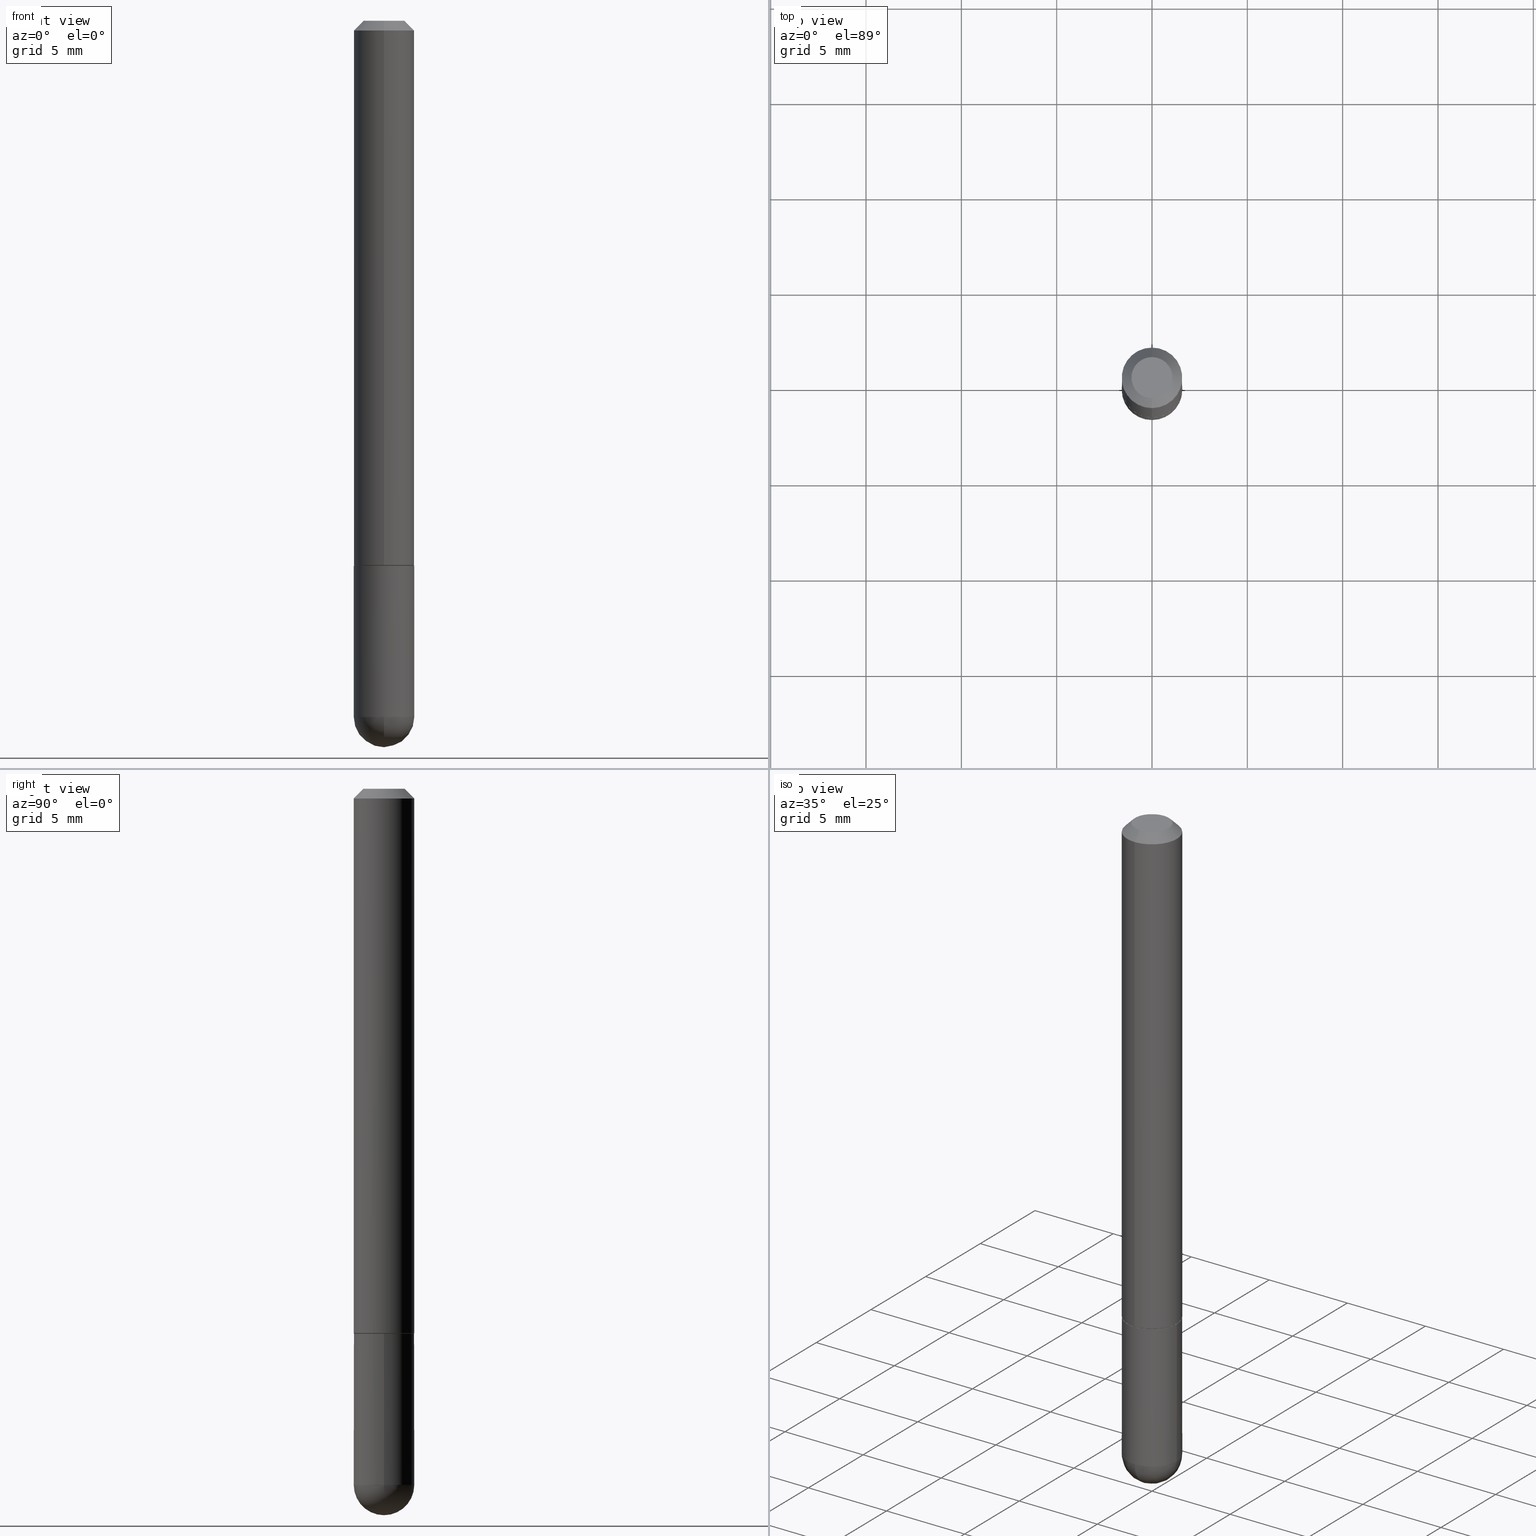
[diagram: canonical four-view strip — front | top / right | iso, engineering-drawing reading convention]
A machine part, canonical four-view strip (front | top / right | iso — engineering-drawing reading convention). The complete STEP part file that produces these views, byte-faithful:
ISO-10303-21;
HEADER;
FILE_DESCRIPTION (( 'STEP AP203' ),
    '1' );
FILE_NAME ('30943.STEP',
    '2024-02-21T16:47:12',
    ( '' ),
    ( '' ),
    'SwSTEP 2.0',
    'SolidWorks 2023',
    '' );
FILE_SCHEMA (( 'CONFIG_CONTROL_DESIGN' ));
ENDSEC;

DATA;
#1 = DIRECTION ( 'NONE',  ( -2.445468806185136597E-29, 3.491481338843145583E-15, 1.000000000000000000 ) ) ;
#2 = LINE ( 'NONE', #156, #409 ) ;
#3 = ORIENTED_EDGE ( 'NONE', *, *, #263, .F. ) ;
#4 = DIRECTION ( 'NONE',  ( 1.000000000000000000, -6.982962677686268288E-15, 0.000000000000000000 ) ) ;
#5 = ORIENTED_EDGE ( 'NONE', *, *, #371, .T. ) ;
#6 = CC_DESIGN_PERSON_AND_ORGANIZATION_ASSIGNMENT ( #276, #168, ( #74 ) ) ;
#7 = AXIS2_PLACEMENT_3D ( 'NONE', #187, #59, #411 ) ;
#8 = EDGE_CURVE ( 'NONE', #160, #316, #391, .T. ) ;
#9 = CIRCLE ( 'NONE', #7, 0.06149999999999997830 ) ;
#10 = DIRECTION ( 'NONE',  ( -6.982962677686265922E-15, -1.000000000000000000, 4.442029257990673709E-15 ) ) ;
#11 = CARTESIAN_POINT ( 'NONE',  ( -4.287811248607198352E-16, -0.06250000000000001388, -0.01999999999999985123 ) ) ;
#12 = ADVANCED_FACE ( 'NONE', ( #50 ), #349, .T. ) ;
#13 = CARTESIAN_POINT ( 'NONE',  ( 0.000000000000000000, 0.000000000000000000, 0.000000000000000000 ) ) ;
#14 = ORIENTED_EDGE ( 'NONE', *, *, #94, .F. ) ;
#15 = PLANE ( 'NONE',  #126 ) ;
#16 = SPHERICAL_SURFACE ( 'NONE', #329, 0.06250000000000018041 ) ;
#17 = ORIENTED_EDGE ( 'NONE', *, *, #401, .F. ) ;
#18 = EDGE_CURVE ( 'NONE', #67, #330, #129, .T. ) ;
#19 = AXIS2_PLACEMENT_3D ( 'NONE', #23, #153, #274 ) ;
#20 = APPROVAL_DATE_TIME ( #366, #86 ) ;
#21 = PERSON_AND_ORGANIZATION_ROLE ( 'creator' ) ;
#22 = EDGE_CURVE ( 'NONE', #275, #54, #44, .T. ) ;
#23 = CARTESIAN_POINT ( 'NONE',  ( 2.751152406958278111E-29, -3.927916506198538435E-15, -1.124999999999999778 ) ) ;
#24 = DIRECTION ( 'NONE',  ( -2.466183177392588152E-29, 3.461817180285283687E-15, 1.000000000000000000 ) ) ;
#25 = VERTEX_POINT ( 'NONE', #173 ) ;
#26 = PERSON_AND_ORGANIZATION_ROLE ( 'creator' ) ;
#27 = CARTESIAN_POINT ( 'NONE',  ( -6.706145734425565363E-45, 9.413514263557746983E-31, 2.719240726277172169E-16 ) ) ;
#28 = VERTEX_POINT ( 'NONE', #323 ) ;
#29 = CALENDAR_DATE ( 2024, 21, 2 ) ;
#30 = LOCAL_TIME ( 11, 47, 12.00000000000000000, #151 ) ;
#31 = VECTOR ( 'NONE', #326, 39.37007874015748143 ) ;
#32 = AXIS2_PLACEMENT_3D ( 'NONE', #208, #305, #159 ) ;
#33 = CYLINDRICAL_SURFACE ( 'NONE', #97, 0.06249999999999997918 ) ;
#34 = EDGE_LOOP ( 'NONE', ( #343, #235, #118, #169 ) ) ;
#35 = CARTESIAN_POINT ( 'NONE',  ( 3.515361408891134418E-29, -5.019004424587023131E-15, -1.437500000000000222 ) ) ;
#36 = CC_DESIGN_DATE_AND_TIME_ASSIGNMENT ( #162, #125, ( #172 ) ) ;
#37 = VERTEX_POINT ( 'NONE', #264 ) ;
#38 = ORIENTED_EDGE ( 'NONE', *, *, #371, .F. ) ;
#39 = DIRECTION ( 'NONE',  ( -7.105427357601001859E-15, -1.000000000000000000, 0.000000000000000000 ) ) ;
#40 = EDGE_CURVE ( 'NONE', #28, #255, #45, .T. ) ;
#41 = DIRECTION ( 'NONE',  ( 6.982962677686265922E-15, 1.000000000000000000, -3.483106191921938315E-15 ) ) ;
#42 = MANIFOLD_SOLID_BREP ( 'Body-Move/Copy2[2]', #224 ) ;
#43 = CIRCLE ( 'NONE', #171, 0.06249999999999995143 ) ;
#44 = LINE ( 'NONE', #110, #161 ) ;
#45 = CIRCLE ( 'NONE', #387, 0.06149999999999997830 ) ;
#46 = APPROVAL ( #307, 'UNSPECIFIED' ) ;
#47 = DIRECTION ( 'NONE',  ( 0.000000000000000000, 0.000000000000000000, 1.000000000000000000 ) ) ;
#48 = CALENDAR_DATE ( 2024, 21, 2 ) ;
#49 = MANIFOLD_SOLID_BREP ( 'Body-Move/Copy2[1]', #107 ) ;
#50 = FACE_OUTER_BOUND ( 'NONE', #218, .T. ) ;
#51 = AXIS2_PLACEMENT_3D ( 'NONE', #342, #335, #226 ) ;
#52 = AXIS2_PLACEMENT_3D ( 'NONE', #386, #351, #41 ) ;
#53 = ADVANCED_FACE ( 'NONE', ( #232 ), #122, .T. ) ;
#54 = VERTEX_POINT ( 'NONE', #11 ) ;
#55 = AXIS2_PLACEMENT_3D ( 'NONE', #35, #279, #4 ) ;
#56 = CC_DESIGN_SECURITY_CLASSIFICATION ( #242, ( #74 ) ) ;
#57 = EDGE_CURVE ( 'NONE', #25, #124, #395, .T. ) ;
#58 = PERSON_AND_ORGANIZATION ( #211, #361 ) ;
#59 = DIRECTION ( 'NONE',  ( -2.466183177392588152E-29, 3.461817180285283687E-15, 1.000000000000000000 ) ) ;
#60 = LINE ( 'NONE', #407, #178 ) ;
#61 = DIRECTION ( 'NONE',  ( -6.982962677686265133E-15, -1.000000000000000000, 4.370956789862817205E-15 ) ) ;
#62 = SPHERICAL_SURFACE ( 'NONE', #253, 0.06250000000000018041 ) ;
#63 = LINE ( 'NONE', #286, #203 ) ;
#64 = ORIENTED_EDGE ( 'NONE', *, *, #57, .T. ) ;
#65 = CARTESIAN_POINT ( 'NONE',  ( 4.364351673553917187E-16, 0.06249999999999988204, -0.02000000000000028491 ) ) ;
#66 = DIRECTION ( 'NONE',  ( -2.466183177392588152E-29, 3.461817180285283687E-15, 1.000000000000000000 ) ) ;
#67 = VERTEX_POINT ( 'NONE', #359 ) ;
#68 = EDGE_CURVE ( 'NONE', #160, #37, #43, .T. ) ;
#69 = CARTESIAN_POINT ( 'NONE',  ( 4.932366354785193785E-31, -6.923634360570589906E-17, -0.02000000000000006981 ) ) ;
#70 = CARTESIAN_POINT ( 'NONE',  ( 2.751152406958278111E-29, -3.927916506198538435E-15, -1.124999999999999778 ) ) ;
#71 = EDGE_LOOP ( 'NONE', ( #287, #64, #3, #207 ) ) ;
#72 = DIRECTION ( 'NONE',  ( 4.937700262164546464E-15, 0.7071067811865449082, -0.7071067811865501263 ) ) ;
#73 = CONICAL_SURFACE ( 'NONE', #51, 0.06249999999999995143, 0.7853981633974480570 ) ;
#74 = PRODUCT_DEFINITION_FORMATION_WITH_SPECIFIED_SOURCE ( 'ANY', '', #185, .NOT_KNOWN. ) ;
#75 = ADVANCED_FACE ( 'NONE', ( #297 ), #15, .F. ) ;
#76 = ORIENTED_EDGE ( 'NONE', *, *, #298, .T. ) ;
#77 = AXIS2_PLACEMENT_3D ( 'NONE', #188, #260, #268 ) ;
#78 = CARTESIAN_POINT ( 'NONE',  ( 2.774456074566661636E-29, -3.894544327820944098E-15, -1.124999999999999778 ) ) ;
#79 = DESIGN_CONTEXT ( 'detailed design', #352, 'design' ) ;
#80 = CARTESIAN_POINT ( 'NONE',  ( 3.515361408891134418E-29, -5.019004424587023131E-15, -1.437500000000000222 ) ) ;
#81 = APPROVAL_DATE_TIME ( #175, #46 ) ;
#82 = ADVANCED_FACE ( 'NONE', ( #360 ), #16, .T. ) ;
#83 = AXIS2_PLACEMENT_3D ( 'NONE', #69, #392, #201 ) ;
#84 = CIRCLE ( 'NONE', #378, 0.06249999999999995143 ) ;
#85 = CARTESIAN_POINT ( 'NONE',  ( -0.06250000000000001388, -4.029371255542718167E-15, -1.124999999999999778 ) ) ;
#86 = APPROVAL ( #252, 'UNSPECIFIED' ) ;
#87 = CARTESIAN_POINT ( 'NONE',  ( 0.000000000000000000, 0.000000000000000000, 0.000000000000000000 ) ) ;
#88 = ADVANCED_FACE ( 'NONE', ( #117 ), #261, .F. ) ;
#89 = DIRECTION ( 'NONE',  ( -2.445468806185136877E-29, 3.491481338843145188E-15, 1.000000000000000000 ) ) ;
#90 = ORIENTED_EDGE ( 'NONE', *, *, #119, .F. ) ;
#91 = CARTESIAN_POINT ( 'NONE',  ( 2.774456074566661636E-29, -3.894544327820944098E-15, -1.124999999999999778 ) ) ;
#92 = DIRECTION ( 'NONE',  ( -6.982962677686265922E-15, -1.000000000000000000, 3.483106191921938315E-15 ) ) ;
#93 = ORIENTED_EDGE ( 'NONE', *, *, #193, .T. ) ;
#94 = EDGE_CURVE ( 'NONE', #67, #37, #204, .T. ) ;
#95 = FACE_OUTER_BOUND ( 'NONE', #336, .T. ) ;
#96 = ORIENTED_EDGE ( 'NONE', *, *, #321, .T. ) ;
#97 = AXIS2_PLACEMENT_3D ( 'NONE', #165, #1, #354 ) ;
#98 = PERSON_AND_ORGANIZATION_ROLE ( 'classification_officer' ) ;
#99 = CARTESIAN_POINT ( 'NONE',  ( 4.405364961712898701E-16, 0.06149999999999608558, -1.125000000000000222 ) ) ;
#100 = DIRECTION ( 'NONE',  ( -2.466183177392588152E-29, 3.461817180285283687E-15, 1.000000000000000000 ) ) ;
#101 = ORIENTED_EDGE ( 'NONE', *, *, #18, .T. ) ;
#102 = DIRECTION ( 'NONE',  ( -2.466183177392588152E-29, 3.461817180285283687E-15, 1.000000000000000000 ) ) ;
#103 = ORIENTED_EDGE ( 'NONE', *, *, #317, .T. ) ;
#104 = ADVANCED_FACE ( 'NONE', ( #112 ), #116, .T. ) ;
#105 = CALENDAR_DATE ( 2024, 21, 2 ) ;
#106 = CIRCLE ( 'NONE', #327, 0.06249999999999995143 ) ;
#107 = CLOSED_SHELL ( 'NONE', ( #146, #82, #134, #75, #240 ) ) ;
#108 = DIRECTION ( 'NONE',  ( 6.982962677686265922E-15, 1.000000000000000000, -4.370956789862807739E-15 ) ) ;
#109 = CC_DESIGN_PERSON_AND_ORGANIZATION_ASSIGNMENT ( #311, #21, ( #172 ) ) ;
#110 = CARTESIAN_POINT ( 'NONE',  ( -4.287811248607198352E-16, -0.06250000000000001388, -0.01999999999999985123 ) ) ;
#111 = ADVANCED_FACE ( 'NONE', ( #367 ), #389, .T. ) ;
#112 = FACE_OUTER_BOUND ( 'NONE', #71, .T. ) ;
#113 = APPROVAL_ROLE ( '' ) ;
#114 = AXIS2_PLACEMENT_3D ( 'NONE', #364, #332, #221 ) ;
#115 = ORIENTED_EDGE ( 'NONE', *, *, #148, .F. ) ;
#116 = CYLINDRICAL_SURFACE ( 'NONE', #269, 0.06250000000000000000 ) ;
#117 = FACE_OUTER_BOUND ( 'NONE', #374, .T. ) ;
#118 = ORIENTED_EDGE ( 'NONE', *, *, #358, .F. ) ;
#119 = EDGE_CURVE ( 'NONE', #167, #316, #303, .T. ) ;
#120 = DIRECTION ( 'NONE',  ( -1.000000000000000000, 6.982962677686265922E-15, -4.876176775795935793E-29 ) ) ;
#121 = EDGE_LOOP ( 'NONE', ( #14, #101, #227, #128 ) ) ;
#122 = CONICAL_SURFACE ( 'NONE', #163, 0.06149999999999997830, 0.7853981633975849475 ) ;
#123 = CYLINDRICAL_SURFACE ( 'NONE', #385, 0.06249999999999997918 ) ;
#124 = VERTEX_POINT ( 'NONE', #65 ) ;
#125 = DATE_TIME_ROLE ( 'creation_date' ) ;
#126 = AXIS2_PLACEMENT_3D ( 'NONE', #236, #150, #120 ) ;
#127 = CARTESIAN_POINT ( 'NONE',  ( 2.771989891389269485E-29, -3.891082510640658844E-15, -1.124000000000000110 ) ) ;
#128 = ORIENTED_EDGE ( 'NONE', *, *, #206, .F. ) ;
#129 = CIRCLE ( 'NONE', #278, 0.06250000000000018041 ) ;
#130 = DATE_AND_TIME ( #288, #296 ) ;
#131 = FACE_OUTER_BOUND ( 'NONE', #251, .T. ) ;
#132 = DIRECTION ( 'NONE',  ( -2.445468806185136597E-29, 3.491481338843145583E-15, 1.000000000000000000 ) ) ;
#133 = ORIENTED_EDGE ( 'NONE', *, *, #68, .T. ) ;
#134 = ADVANCED_FACE ( 'NONE', ( #95 ), #62, .T. ) ;
#135 = CARTESIAN_POINT ( 'NONE',  ( -4.440892098500294840E-16, -0.06250000000000532907, -1.437500000000000000 ) ) ;
#136 = EDGE_LOOP ( 'NONE', ( #399, #76, #96, #383 ) ) ;
#137 = CARTESIAN_POINT ( 'NONE',  ( 3.515361408891134418E-29, -5.019004424587023131E-15, -1.437500000000000222 ) ) ;
#138 = DIRECTION ( 'NONE',  ( -6.982962677686266711E-15, -1.000000000000000000, 3.461817180285284476E-15 ) ) ;
#139 = ORIENTED_EDGE ( 'NONE', *, *, #94, .T. ) ;
#140 = AXIS2_PLACEMENT_3D ( 'NONE', #27, #318, #213 ) ;
#141 = EDGE_CURVE ( 'NONE', #28, #376, #60, .T. ) ;
#142 = LINE ( 'NONE', #309, #398 ) ;
#143 = ORIENTED_EDGE ( 'NONE', *, *, #148, .T. ) ;
#144 =( NAMED_UNIT ( * ) SI_UNIT ( $, .STERADIAN. ) SOLID_ANGLE_UNIT ( ) );
#145 = DIRECTION ( 'NONE',  ( -2.466183177392588152E-29, 3.461817180285283687E-15, 1.000000000000000000 ) ) ;
#146 = ADVANCED_FACE ( 'NONE', ( #282 ), #123, .T. ) ;
#147 = APPLICATION_CONTEXT ( 'configuration controlled 3d designs of mechanical parts and assemblies' ) ;
#148 = EDGE_CURVE ( 'NONE', #330, #160, #84, .T. ) ;
#149 = APPLICATION_PROTOCOL_DEFINITION ( 'international standard', 'config_control_design', 1994, #147 ) ;
#150 = DIRECTION ( 'NONE',  ( 2.438088387897960049E-29, -3.491481338843145188E-15, -1.000000000000000000 ) ) ;
#151 = COORDINATED_UNIVERSAL_TIME_OFFSET ( 5, 0, .BEHIND. ) ;
#152 = CC_DESIGN_PERSON_AND_ORGANIZATION_ASSIGNMENT ( #215, #98, ( #242 ) ) ;
#153 = DIRECTION ( 'NONE',  ( -2.445468806185136597E-29, 3.491481338843145583E-15, 1.000000000000000000 ) ) ;
#154 = ORIENTED_EDGE ( 'NONE', *, *, #206, .T. ) ;
#155 = DIRECTION ( 'NONE',  ( -2.445468806185136597E-29, 3.491481338843145583E-15, 1.000000000000000000 ) ) ;
#156 = CARTESIAN_POINT ( 'NONE',  ( 4.364351673553917187E-16, 0.06249999999999988204, -0.02000000000000028491 ) ) ;
#157 = ORIENTED_EDGE ( 'NONE', *, *, #193, .F. ) ;
#158 = AXIS2_PLACEMENT_3D ( 'NONE', #127, #244, #283 ) ;
#159 = DIRECTION ( 'NONE',  ( -6.982962677686265922E-15, -1.000000000000000000, 4.442029257990673709E-15 ) ) ;
#160 = VERTEX_POINT ( 'NONE', #334 ) ;
#161 = VECTOR ( 'NONE', #291, 39.37007874015748143 ) ;
#162 = DATE_AND_TIME ( #29, #267 ) ;
#163 = AXIS2_PLACEMENT_3D ( 'NONE', #294, #353, #10 ) ;
#164 = PRODUCT_DEFINITION_SHAPE ( 'NONE', 'NONE',  #172 ) ;
#165 = CARTESIAN_POINT ( 'NONE',  ( 0.000000000000000000, 0.000000000000000000, 0.000000000000000000 ) ) ;
#166 = DIRECTION ( 'NONE',  ( -6.982962677686265922E-15, -1.000000000000000000, 3.461817180285283292E-15 ) ) ;
#167 = VERTEX_POINT ( 'NONE', #85 ) ;
#168 = PERSON_AND_ORGANIZATION_ROLE ( 'design_supplier' ) ;
#169 = ORIENTED_EDGE ( 'NONE', *, *, #141, .F. ) ;
#170 = ORIENTED_EDGE ( 'NONE', *, *, #317, .F. ) ;
#171 = AXIS2_PLACEMENT_3D ( 'NONE', #80, #396, #200 ) ;
#172 = PRODUCT_DEFINITION ( 'UNKNOWN', '', #74, #79 ) ;
#173 = CARTESIAN_POINT ( 'NONE',  ( 4.440892098500769143E-16, 0.06249999999999615585, -1.124000000000000332 ) ) ;
#174 = CC_DESIGN_APPROVAL ( #324, ( #172 ) ) ;
#175 = DATE_AND_TIME ( #48, #210 ) ;
#176 = CARTESIAN_POINT ( 'NONE',  ( 3.184241630977247611E-29, -5.493186792727071849E-15, -1.437500000000000000 ) ) ;
#177 = EDGE_CURVE ( 'NONE', #412, #275, #186, .T. ) ;
#178 = VECTOR ( 'NONE', #404, 39.37007874015748143 ) ;
#179 = CC_DESIGN_APPROVAL ( #86, ( #74 ) ) ;
#180 = ORIENTED_EDGE ( 'NONE', *, *, #298, .F. ) ;
#181 = CIRCLE ( 'NONE', #158, 0.06250000000000005551 ) ;
#182 = EDGE_CURVE ( 'NONE', #194, #330, #314, .T. ) ;
#183 = DIRECTION ( 'NONE',  ( 1.000000000000000000, -6.982962677686267499E-15, 4.876176775795936353E-29 ) ) ;
#184 = CARTESIAN_POINT ( 'NONE',  ( -3.601761448830035670E-16, -0.04249999999999961448, 4.190513027898404513E-16 ) ) ;
#185 = PRODUCT ( '30943', '30943', '', ( #262 ) ) ;
#186 = CIRCLE ( 'NONE', #140, 0.04249999999999961448 ) ;
#187 = CARTESIAN_POINT ( 'NONE',  ( 2.774456074566661636E-29, -3.894544327820944098E-15, -1.124999999999999778 ) ) ;
#188 = CARTESIAN_POINT ( 'NONE',  ( 3.184241630977247611E-29, -5.493186792727071849E-15, -1.437500000000000000 ) ) ;
#189 = DIRECTION ( 'NONE',  ( 5.024295867788748699E-15, 0.7071067811866466046, 0.7071067811864484298 ) ) ;
#190 = ORIENTED_EDGE ( 'NONE', *, *, #22, .T. ) ;
#191 = DIRECTION ( 'NONE',  ( 1.000000000000000000, -6.982962677686268288E-15, 0.000000000000000000 ) ) ;
#192 = CARTESIAN_POINT ( 'NONE',  ( -0.06249999999999997918, 4.440892098500624683E-16, -3.074334431409315413E-30 ) ) ;
#193 = EDGE_CURVE ( 'NONE', #255, #28, #9, .T. ) ;
#194 = VERTEX_POINT ( 'NONE', #308 ) ;
#195 = DIRECTION ( 'NONE',  ( -2.445468806185136877E-29, 3.491481338843145188E-15, 1.000000000000000000 ) ) ;
#196 = DIRECTION ( 'NONE',  ( -1.000000000000000000, 6.982962677686265922E-15, -4.883557194083112340E-29 ) ) ;
#197 = ORIENTED_EDGE ( 'NONE', *, *, #22, .F. ) ;
#198 =( GEOMETRIC_REPRESENTATION_CONTEXT ( 3 ) GLOBAL_UNCERTAINTY_ASSIGNED_CONTEXT ( ( #403 ) ) GLOBAL_UNIT_ASSIGNED_CONTEXT ( ( #259, #381, #144 ) ) REPRESENTATION_CONTEXT ( 'NONE', 'WORKASPACE' ) );
#199 = COORDINATED_UNIVERSAL_TIME_OFFSET ( 5, 0, .BEHIND. ) ;
#200 = DIRECTION ( 'NONE',  ( 1.000000000000000000, -6.982962677686268288E-15, 0.000000000000000000 ) ) ;
#201 = DIRECTION ( 'NONE',  ( -6.982962677686265922E-15, -1.000000000000000000, 3.483106191921938315E-15 ) ) ;
#202 = PERSON_AND_ORGANIZATION ( #211, #361 ) ;
#203 = VECTOR ( 'NONE', #189, 39.37007874015748143 ) ;
#204 = CIRCLE ( 'NONE', #77, 0.06250000000000018041 ) ;
#205 = DIRECTION ( 'NONE',  ( -6.982962677686265922E-15, -1.000000000000000000, 3.461817180285283292E-15 ) ) ;
#206 = EDGE_CURVE ( 'NONE', #37, #194, #363, .T. ) ;
#207 = ORIENTED_EDGE ( 'NONE', *, *, #321, .F. ) ;
#208 = CARTESIAN_POINT ( 'NONE',  ( 2.774456074566661636E-29, -3.894544327820944098E-15, -1.124999999999999778 ) ) ;
#209 = APPROVAL_DATE_TIME ( #384, #324 ) ;
#210 = LOCAL_TIME ( 11, 47, 12.00000000000000000, #199 ) ;
#211 = PERSON ( 'UNSPECIFIED', 'UNSPECIFIED', 'UNSPECIFIED', ('UNSPECIFIED'), ('UNSPECIFIED'), ('UNSPECIFIED') ) ;
#212 = ADVANCED_FACE ( 'NONE', ( #131 ), #246, .F. ) ;
#213 = DIRECTION ( 'NONE',  ( -6.982962677686266711E-15, -1.000000000000000000, 3.461817180285284476E-15 ) ) ;
#214 = DIRECTION ( 'NONE',  ( -2.466183177392588152E-29, 3.461817180285283687E-15, 1.000000000000000000 ) ) ;
#215 = PERSON_AND_ORGANIZATION ( #211, #361 ) ;
#216 = FACE_OUTER_BOUND ( 'NONE', #256, .T. ) ;
#217 = LINE ( 'NONE', #192, #231 ) ;
#218 = EDGE_LOOP ( 'NONE', ( #197, #270, #103, #273 ) ) ;
#219 = AXIS2_PLACEMENT_3D ( 'NONE', #137, #155, #243 ) ;
#220 = CARTESIAN_POINT ( 'NONE',  ( 3.515361408891134418E-29, -5.019004424587023131E-15, -1.437500000000000222 ) ) ;
#221 = DIRECTION ( 'NONE',  ( 6.982962677686265922E-15, 1.000000000000000000, -3.461817180285283687E-15 ) ) ;
#222 = CARTESIAN_POINT ( 'NONE',  ( 0.000000000000000000, 0.000000000000000000, 0.000000000000000000 ) ) ;
#223 = EDGE_LOOP ( 'NONE', ( #17, #93, #390, #180 ) ) ;
#224 = CLOSED_SHELL ( 'NONE', ( #111, #104, #285, #12, #265, #53, #212, #88 ) ) ;
#225 = CC_DESIGN_PERSON_AND_ORGANIZATION_ASSIGNMENT ( #271, #26, ( #74 ) ) ;
#226 = DIRECTION ( 'NONE',  ( 6.982962677686265922E-15, 1.000000000000000000, -3.483106191921938315E-15 ) ) ;
#227 = ORIENTED_EDGE ( 'NONE', *, *, #182, .F. ) ;
#228 = CIRCLE ( 'NONE', #356, 0.06250000000000005551 ) ;
#229 = ORIENTED_EDGE ( 'NONE', *, *, #337, .T. ) ;
#230 = DIRECTION ( 'NONE',  ( -6.982962677686265922E-15, -1.000000000000000000, 4.442029257990673709E-15 ) ) ;
#231 = VECTOR ( 'NONE', #89, 39.37007874015748143 ) ;
#232 = FACE_OUTER_BOUND ( 'NONE', #223, .T. ) ;
#233 = CARTESIAN_POINT ( 'NONE',  ( 4.440892098500625669E-16, 0.06250000000000000000, -2.163635737678302058E-16 ) ) ;
#234 = CARTESIAN_POINT ( 'NONE',  ( 0.000000000000000000, 0.000000000000000000, 0.000000000000000000 ) ) ;
#235 = ORIENTED_EDGE ( 'NONE', *, *, #401, .T. ) ;
#236 = CARTESIAN_POINT ( 'NONE',  ( 4.364351673554192795E-16, 0.06249999999999608646, -1.125000000000000222 ) ) ;
#237 = PERSON_AND_ORGANIZATION ( #211, #361 ) ;
#238 = ADVANCED_BREP_SHAPE_REPRESENTATION ( '30943', ( #49, #42, #312 ), #198 ) ;
#239 = AXIS2_PLACEMENT_3D ( 'NONE', #222, #100, #166 ) ;
#240 = ADVANCED_FACE ( 'NONE', ( #216 ), #33, .T. ) ;
#241 = CIRCLE ( 'NONE', #295, 0.06250000000000001388 ) ;
#242 = SECURITY_CLASSIFICATION ( '', '', #377 ) ;
#243 = DIRECTION ( 'NONE',  ( 1.000000000000000000, -6.982962677686268288E-15, 0.000000000000000000 ) ) ;
#244 = DIRECTION ( 'NONE',  ( -2.466183177392588152E-29, 3.461817180285283687E-15, 1.000000000000000000 ) ) ;
#245 = APPROVAL_ROLE ( '' ) ;
#246 = PLANE ( 'NONE',  #258 ) ;
#247 = CARTESIAN_POINT ( 'NONE',  ( -6.706145734425565363E-45, 9.413514263557746983E-31, 2.719240726277172169E-16 ) ) ;
#248 = ORIENTED_EDGE ( 'NONE', *, *, #337, .F. ) ;
#249 = DIMENSIONAL_EXPONENTS ( 1.000000000000000000, 0.000000000000000000, 0.000000000000000000, 0.000000000000000000, 0.000000000000000000, 0.000000000000000000, 0.000000000000000000 ) ;
#250 = COORDINATED_UNIVERSAL_TIME_OFFSET ( 5, 0, .BEHIND. ) ;
#251 = EDGE_LOOP ( 'NONE', ( #348, #157 ) ) ;
#252 = APPROVAL_STATUS ( 'not_yet_approved' ) ;
#253 = AXIS2_PLACEMENT_3D ( 'NONE', #338, #375, #272 ) ;
#254 = DIRECTION ( 'NONE',  ( -2.466183177392587871E-29, 3.461817180285283687E-15, 1.000000000000000000 ) ) ;
#255 = VERTEX_POINT ( 'NONE', #99 ) ;
#256 = EDGE_LOOP ( 'NONE', ( #38, #380, #143, #368, #90 ) ) ;
#257 = FACE_OUTER_BOUND ( 'NONE', #136, .T. ) ;
#258 = AXIS2_PLACEMENT_3D ( 'NONE', #91, #254, #372 ) ;
#259 =( CONVERSION_BASED_UNIT ( 'INCH', #350 ) LENGTH_UNIT ( ) NAMED_UNIT ( #249 ) );
#260 = DIRECTION ( 'NONE',  ( 1.000000000000000000, -6.982962677686265922E-15, 4.883557194083112340E-29 ) ) ;
#261 = PLANE ( 'NONE',  #114 ) ;
#262 = MECHANICAL_CONTEXT ( 'NONE', #147, 'mechanical' ) ;
#263 = EDGE_CURVE ( 'NONE', #54, #124, #347, .T. ) ;
#264 = CARTESIAN_POINT ( 'NONE',  ( 4.364351673554256397E-16, 0.06249999999999480971, -1.437500000000000444 ) ) ;
#265 = ADVANCED_FACE ( 'NONE', ( #257 ), #346, .T. ) ;
#266 = DIRECTION ( 'NONE',  ( 1.000000000000000000, 0.000000000000000000, 0.000000000000000000 ) ) ;
#267 = LOCAL_TIME ( 11, 47, 12.00000000000000000, #333 ) ;
#268 = DIRECTION ( 'NONE',  ( 6.982962677686266711E-15, 1.000000000000000000, 0.000000000000000000 ) ) ;
#269 = AXIS2_PLACEMENT_3D ( 'NONE', #13, #388, #205 ) ;
#270 = ORIENTED_EDGE ( 'NONE', *, *, #177, .F. ) ;
#271 = PERSON_AND_ORGANIZATION ( #211, #361 ) ;
#272 = DIRECTION ( 'NONE',  ( 6.982962677686265922E-15, 1.000000000000000000, -4.370956789862807739E-15 ) ) ;
#273 = ORIENTED_EDGE ( 'NONE', *, *, #355, .T. ) ;
#274 = DIRECTION ( 'NONE',  ( 1.000000000000000000, -6.982962677686269077E-15, 0.000000000000000000 ) ) ;
#275 = VERTEX_POINT ( 'NONE', #184 ) ;
#276 = PERSON_AND_ORGANIZATION ( #211, #361 ) ;
#277 = AXIS2_PLACEMENT_3D ( 'NONE', #247, #66, #138 ) ;
#278 = AXIS2_PLACEMENT_3D ( 'NONE', #176, #322, #39 ) ;
#279 = DIRECTION ( 'NONE',  ( -2.445468806185136597E-29, 3.491481338843145583E-15, 1.000000000000000000 ) ) ;
#280 = ORIENTED_EDGE ( 'NONE', *, *, #177, .T. ) ;
#281 = PERSON_AND_ORGANIZATION ( #211, #361 ) ;
#282 = FACE_OUTER_BOUND ( 'NONE', #405, .T. ) ;
#283 = DIRECTION ( 'NONE',  ( -6.982962677686265133E-15, -1.000000000000000000, 4.370956789862817205E-15 ) ) ;
#284 = ORIENTED_EDGE ( 'NONE', *, *, #8, .F. ) ;
#285 = ADVANCED_FACE ( 'NONE', ( #382 ), #73, .T. ) ;
#286 = CARTESIAN_POINT ( 'NONE',  ( 4.369837824924891195E-16, 0.06149999999999608558, -1.125000000000000222 ) ) ;
#287 = ORIENTED_EDGE ( 'NONE', *, *, #358, .T. ) ;
#288 = CALENDAR_DATE ( 2024, 21, 2 ) ;
#289 = CIRCLE ( 'NONE', #277, 0.04249999999999961448 ) ;
#290 = ORIENTED_EDGE ( 'NONE', *, *, #263, .T. ) ;
#291 = DIRECTION ( 'NONE',  ( -4.851104656540962697E-15, -0.7071067811865497932, -0.7071067811865452413 ) ) ;
#292 = APPROVAL_PERSON_ORGANIZATION ( #237, #324, #245 ) ;
#293 = EDGE_CURVE ( 'NONE', #316, #167, #241, .T. ) ;
#294 = CARTESIAN_POINT ( 'NONE',  ( 2.774456074566661636E-29, -3.894544327820944098E-15, -1.124999999999999778 ) ) ;
#295 = AXIS2_PLACEMENT_3D ( 'NONE', #70, #132, #408 ) ;
#296 = LOCAL_TIME ( 11, 47, 12.00000000000000000, #410 ) ;
#297 = FACE_OUTER_BOUND ( 'NONE', #320, .T. ) ;
#298 = EDGE_CURVE ( 'NONE', #25, #376, #228, .T. ) ;
#299 = PERSON_AND_ORGANIZATION_ROLE ( 'design_owner' ) ;
#300 = EDGE_LOOP ( 'NONE', ( #248, #190, #290, #170 ) ) ;
#301 = SHAPE_DEFINITION_REPRESENTATION ( #164, #238 ) ;
#302 = ORIENTED_EDGE ( 'NONE', *, *, #68, .F. ) ;
#303 = CIRCLE ( 'NONE', #19, 0.06250000000000001388 ) ;
#304 = APPROVAL_PERSON_ORGANIZATION ( #281, #86, #406 ) ;
#305 = DIRECTION ( 'NONE',  ( -2.466183177392588152E-29, 3.461817180285283687E-15, 1.000000000000000000 ) ) ;
#306 = PRODUCT_RELATED_PRODUCT_CATEGORY ( 'detail', '', ( #185 ) ) ;
#307 = APPROVAL_STATUS ( 'not_yet_approved' ) ;
#308 = CARTESIAN_POINT ( 'NONE',  ( -0.06249999999999995143, -4.029371255542718167E-15, -1.437500000000000222 ) ) ;
#309 = CARTESIAN_POINT ( 'NONE',  ( -4.364351673553916201E-16, -0.06250000000000000000, 2.163635737678302058E-16 ) ) ;
#310 = DIRECTION ( 'NONE',  ( -2.445468806185136597E-29, 3.491481338843145583E-15, 1.000000000000000000 ) ) ;
#311 = PERSON_AND_ORGANIZATION ( #211, #361 ) ;
#312 = AXIS2_PLACEMENT_3D ( 'NONE', #234, #47, #266 ) ;
#313 = DIRECTION ( 'NONE',  ( -2.445468806185136597E-29, 3.491481338843145583E-15, 1.000000000000000000 ) ) ;
#314 = CIRCLE ( 'NONE', #55, 0.06249999999999995143 ) ;
#315 = CARTESIAN_POINT ( 'NONE',  ( 3.666055405785276810E-16, 0.04249999999999961448, 1.247968424655939579E-16 ) ) ;
#316 = VERTEX_POINT ( 'NONE', #344 ) ;
#317 = EDGE_CURVE ( 'NONE', #412, #124, #2, .T. ) ;
#318 = DIRECTION ( 'NONE',  ( -2.466183177392588152E-29, 3.461817180285283687E-15, 1.000000000000000000 ) ) ;
#319 = ORIENTED_EDGE ( 'NONE', *, *, #18, .F. ) ;
#320 = EDGE_LOOP ( 'NONE', ( #340, #402 ) ) ;
#321 = EDGE_CURVE ( 'NONE', #376, #54, #142, .T. ) ;
#322 = DIRECTION ( 'NONE',  ( -1.000000000000000000, 7.105427357601001070E-15, -4.926315508542082329E-29 ) ) ;
#323 = CARTESIAN_POINT ( 'NONE',  ( -4.294522046776775027E-16, -0.06150000000000387101, -1.124999999999999556 ) ) ;
#324 = APPROVAL ( #362, 'UNSPECIFIED' ) ;
#325 = CARTESIAN_POINT ( 'NONE',  ( 0.06249999999999997918, -4.364351673553915708E-16, 3.047610484872459170E-30 ) ) ;
#326 = DIRECTION ( 'NONE',  ( -2.466183177392588152E-29, 3.461817180285283687E-15, 1.000000000000000000 ) ) ;
#327 = AXIS2_PLACEMENT_3D ( 'NONE', #373, #214, #92 ) ;
#328 = CARTESIAN_POINT ( 'NONE',  ( 3.184241630977247611E-29, -5.493186792727071849E-15, -1.437500000000000000 ) ) ;
#329 = AXIS2_PLACEMENT_3D ( 'NONE', #328, #196, #108 ) ;
#330 = VERTEX_POINT ( 'NONE', #135 ) ;
#331 = CC_DESIGN_DATE_AND_TIME_ASSIGNMENT ( #130, #369, ( #242 ) ) ;
#332 = DIRECTION ( 'NONE',  ( 2.466183177392587871E-29, -3.461817180285283687E-15, -1.000000000000000000 ) ) ;
#333 = COORDINATED_UNIVERSAL_TIME_OFFSET ( 5, 0, .BEHIND. ) ;
#334 = CARTESIAN_POINT ( 'NONE',  ( 0.06249999999999995143, -4.909895632748172453E-15, -1.437500000000000222 ) ) ;
#335 = DIRECTION ( 'NONE',  ( 2.466183177392588152E-29, -3.461817180285283687E-15, -1.000000000000000000 ) ) ;
#336 = EDGE_LOOP ( 'NONE', ( #319, #139, #302, #115 ) ) ;
#337 = EDGE_CURVE ( 'NONE', #275, #412, #289, .T. ) ;
#338 = CARTESIAN_POINT ( 'NONE',  ( 3.184241630977247611E-29, -5.493186792727071849E-15, -1.437500000000000000 ) ) ;
#339 = CARTESIAN_POINT ( 'NONE',  ( -4.364351673553642565E-16, -0.06250000000000394129, -1.123999999999999888 ) ) ;
#340 = ORIENTED_EDGE ( 'NONE', *, *, #293, .T. ) ;
#341 = LOCAL_TIME ( 11, 47, 12.00000000000000000, #250 ) ;
#342 = CARTESIAN_POINT ( 'NONE',  ( 4.932366354785193785E-31, -6.923634360570589906E-17, -0.02000000000000006981 ) ) ;
#343 = ORIENTED_EDGE ( 'NONE', *, *, #40, .T. ) ;
#344 = CARTESIAN_POINT ( 'NONE',  ( 0.06250000000000001388, -4.364351673553930105E-15, -1.124999999999999778 ) ) ;
#345 = ORIENTED_EDGE ( 'NONE', *, *, #293, .F. ) ;
#346 = CYLINDRICAL_SURFACE ( 'NONE', #239, 0.06250000000000000000 ) ;
#347 = CIRCLE ( 'NONE', #83, 0.06249999999999995143 ) ;
#348 = ORIENTED_EDGE ( 'NONE', *, *, #40, .F. ) ;
#349 = CONICAL_SURFACE ( 'NONE', #52, 0.06249999999999995143, 0.7853981633974480570 ) ;
#350 = LENGTH_MEASURE_WITH_UNIT ( LENGTH_MEASURE( 0.02539999999999999897 ), #379 );
#351 = DIRECTION ( 'NONE',  ( 2.466183177392588152E-29, -3.461817180285283687E-15, -1.000000000000000000 ) ) ;
#352 = APPLICATION_CONTEXT ( 'configuration controlled 3d designs of mechanical parts and assemblies' ) ;
#353 = DIRECTION ( 'NONE',  ( -2.466183177392588152E-29, 3.461817180285283687E-15, 1.000000000000000000 ) ) ;
#354 = DIRECTION ( 'NONE',  ( 1.000000000000000000, -6.982962677686267499E-15, 4.876176775795936353E-29 ) ) ;
#355 = EDGE_CURVE ( 'NONE', #124, #54, #106, .T. ) ;
#356 = AXIS2_PLACEMENT_3D ( 'NONE', #370, #102, #61 ) ;
#357 = CC_DESIGN_APPROVAL ( #46, ( #242 ) ) ;
#358 = EDGE_CURVE ( 'NONE', #376, #25, #181, .T. ) ;
#359 = CARTESIAN_POINT ( 'NONE',  ( 3.339755826017505008E-29, -5.707577355157432999E-15, -1.500000000000000222 ) ) ;
#360 = FACE_OUTER_BOUND ( 'NONE', #121, .T. ) ;
#361 = ORGANIZATION ( 'UNSPECIFIED', 'UNSPECIFIED', '' ) ;
#362 = APPROVAL_STATUS ( 'not_yet_approved' ) ;
#363 = CIRCLE ( 'NONE', #219, 0.06249999999999995143 ) ;
#364 = CARTESIAN_POINT ( 'NONE',  ( 2.967759138016636432E-16, 0.04249999999999961448, -1.116519384826460588E-17 ) ) ;
#365 = CC_DESIGN_PERSON_AND_ORGANIZATION_ASSIGNMENT ( #202, #299, ( #185 ) ) ;
#366 = DATE_AND_TIME ( #400, #30 ) ;
#367 = FACE_OUTER_BOUND ( 'NONE', #34, .T. ) ;
#368 = ORIENTED_EDGE ( 'NONE', *, *, #8, .T. ) ;
#369 = DATE_TIME_ROLE ( 'classification_date' ) ;
#370 = CARTESIAN_POINT ( 'NONE',  ( 2.771989891389269485E-29, -3.891082510640658844E-15, -1.124000000000000110 ) ) ;
#371 = EDGE_CURVE ( 'NONE', #194, #167, #217, .T. ) ;
#372 = DIRECTION ( 'NONE',  ( -6.982962677686265922E-15, -1.000000000000000000, 3.461817180285283687E-15 ) ) ;
#373 = CARTESIAN_POINT ( 'NONE',  ( 4.932366354785193785E-31, -6.923634360570589906E-17, -0.02000000000000006981 ) ) ;
#374 = EDGE_LOOP ( 'NONE', ( #280, #229 ) ) ;
#375 = DIRECTION ( 'NONE',  ( -1.000000000000000000, 6.982962677686265922E-15, -4.883557194083112340E-29 ) ) ;
#376 = VERTEX_POINT ( 'NONE', #339 ) ;
#377 = SECURITY_CLASSIFICATION_LEVEL ( 'unclassified' ) ;
#378 = AXIS2_PLACEMENT_3D ( 'NONE', #220, #310, #191 ) ;
#379 =( LENGTH_UNIT ( ) NAMED_UNIT ( * ) SI_UNIT ( $, .METRE. ) );
#380 = ORIENTED_EDGE ( 'NONE', *, *, #182, .T. ) ;
#381 =( NAMED_UNIT ( * ) PLANE_ANGLE_UNIT ( ) SI_UNIT ( $, .RADIAN. ) );
#382 = FACE_OUTER_BOUND ( 'NONE', #300, .T. ) ;
#383 = ORIENTED_EDGE ( 'NONE', *, *, #355, .F. ) ;
#384 = DATE_AND_TIME ( #105, #341 ) ;
#385 = AXIS2_PLACEMENT_3D ( 'NONE', #87, #313, #183 ) ;
#386 = CARTESIAN_POINT ( 'NONE',  ( 4.932366354785193785E-31, -6.923634360570589906E-17, -0.02000000000000006981 ) ) ;
#387 = AXIS2_PLACEMENT_3D ( 'NONE', #78, #145, #230 ) ;
#388 = DIRECTION ( 'NONE',  ( -2.466183177392588152E-29, 3.461817180285283687E-15, 1.000000000000000000 ) ) ;
#389 = CONICAL_SURFACE ( 'NONE', #32, 0.06149999999999997830, 0.7853981633975849475 ) ;
#390 = ORIENTED_EDGE ( 'NONE', *, *, #141, .T. ) ;
#391 = LINE ( 'NONE', #325, #394 ) ;
#392 = DIRECTION ( 'NONE',  ( -2.466183177392588152E-29, 3.461817180285283687E-15, 1.000000000000000000 ) ) ;
#393 = APPROVAL_PERSON_ORGANIZATION ( #58, #46, #113 ) ;
#394 = VECTOR ( 'NONE', #195, 39.37007874015748143 ) ;
#395 = LINE ( 'NONE', #233, #31 ) ;
#396 = DIRECTION ( 'NONE',  ( -2.445468806185136597E-29, 3.491481338843145583E-15, 1.000000000000000000 ) ) ;
#397 = APPLICATION_PROTOCOL_DEFINITION ( 'international standard', 'config_control_design', 1994, #352 ) ;
#398 = VECTOR ( 'NONE', #24, 39.37007874015748143 ) ;
#399 = ORIENTED_EDGE ( 'NONE', *, *, #57, .F. ) ;
#400 = CALENDAR_DATE ( 2024, 21, 2 ) ;
#401 = EDGE_CURVE ( 'NONE', #255, #25, #63, .T. ) ;
#402 = ORIENTED_EDGE ( 'NONE', *, *, #119, .T. ) ;
#403 = UNCERTAINTY_MEASURE_WITH_UNIT (LENGTH_MEASURE( 1.000000000000000082E-05 ), #259, 'distance_accuracy_value', 'NONE');
#404 = DIRECTION ( 'NONE',  ( -4.937700262165222518E-15, -0.7071067811866417196, 0.7071067811864533148 ) ) ;
#405 = EDGE_LOOP ( 'NONE', ( #154, #5, #345, #284, #133 ) ) ;
#406 = APPROVAL_ROLE ( '' ) ;
#407 = CARTESIAN_POINT ( 'NONE',  ( -4.294522046776775027E-16, -0.06150000000000387101, -1.124999999999999556 ) ) ;
#408 = DIRECTION ( 'NONE',  ( 1.000000000000000000, -6.982962677686269077E-15, 0.000000000000000000 ) ) ;
#409 = VECTOR ( 'NONE', #72, 39.37007874015748143 ) ;
#410 = COORDINATED_UNIVERSAL_TIME_OFFSET ( 5, 0, .BEHIND. ) ;
#411 = DIRECTION ( 'NONE',  ( -6.982962677686265922E-15, -1.000000000000000000, 4.442029257990673709E-15 ) ) ;
#412 = VERTEX_POINT ( 'NONE', #315 ) ;
ENDSEC;
END-ISO-10303-21;
